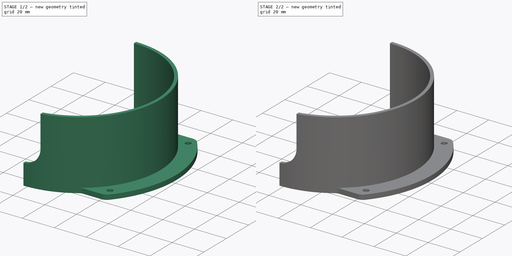
[diagram: build sequence overview — one tinted view per stage of 2, left to right]
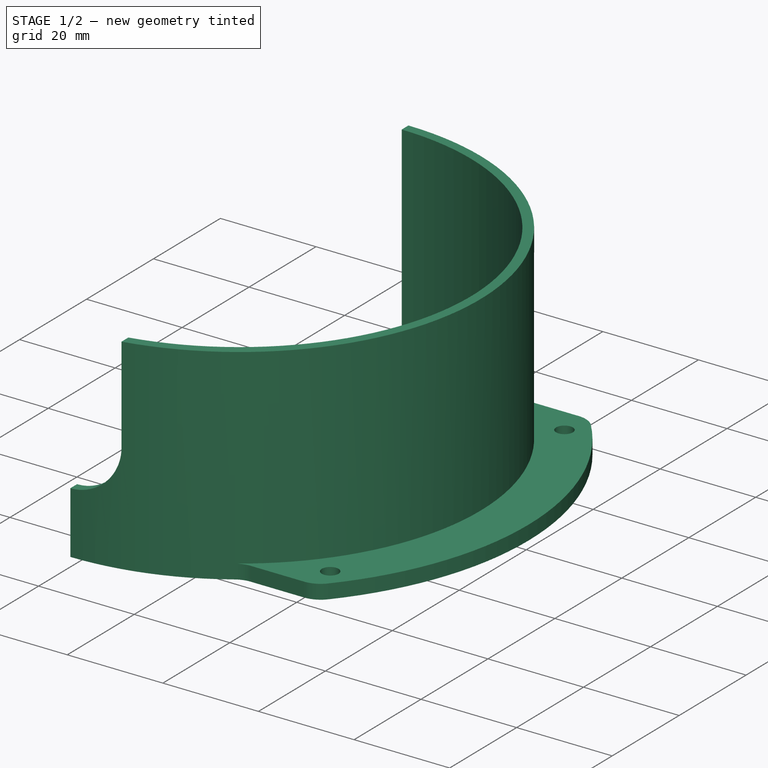
[diagram: stage 1 of 2 — iso view after this stage's code; geometry added in this stage tinted green]
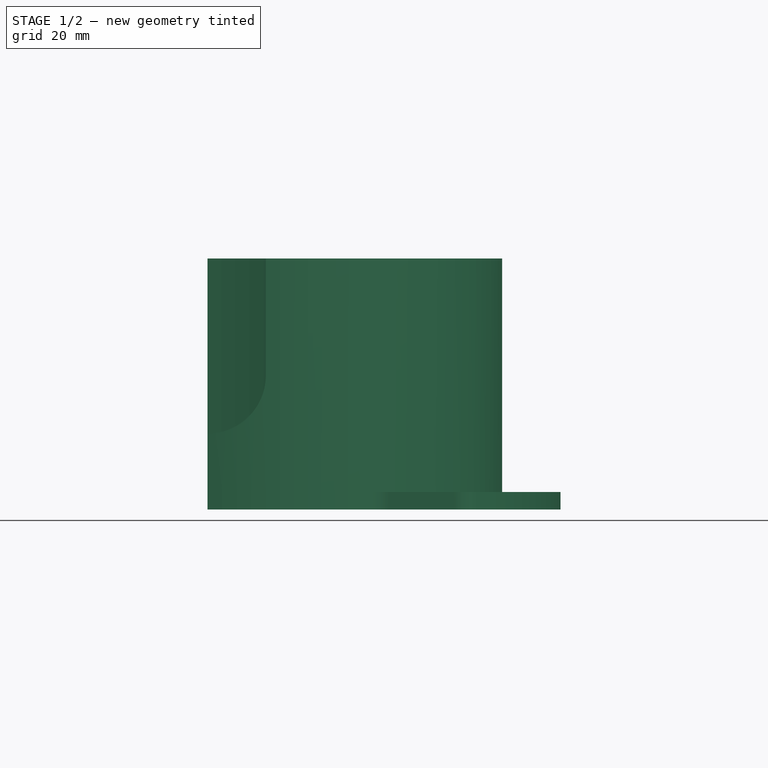
[diagram: stage 1 of 2 — front view after this stage's code; geometry added in this stage tinted green]
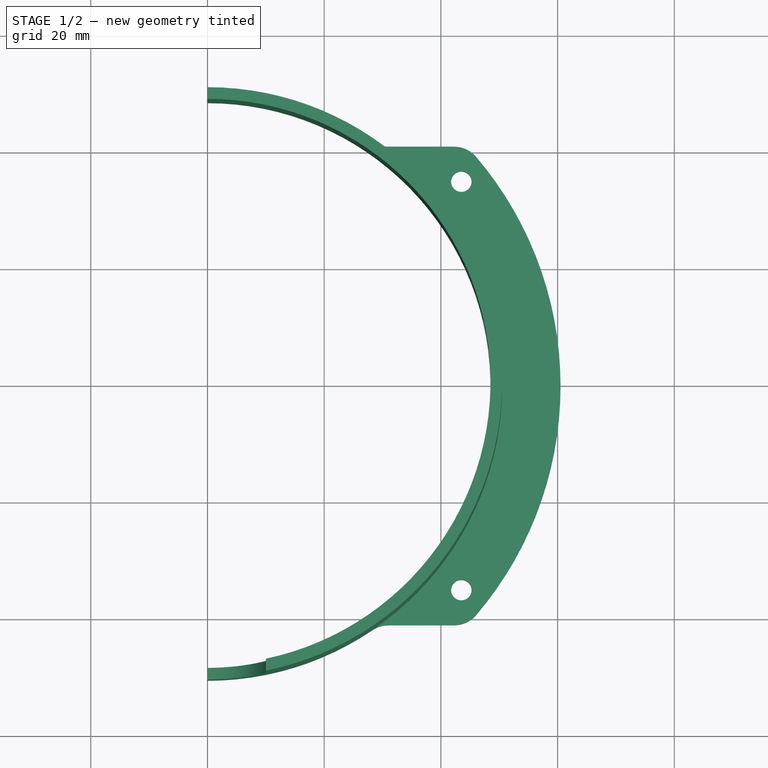
[diagram: stage 1 of 2 — top view after this stage's code; geometry added in this stage tinted green]
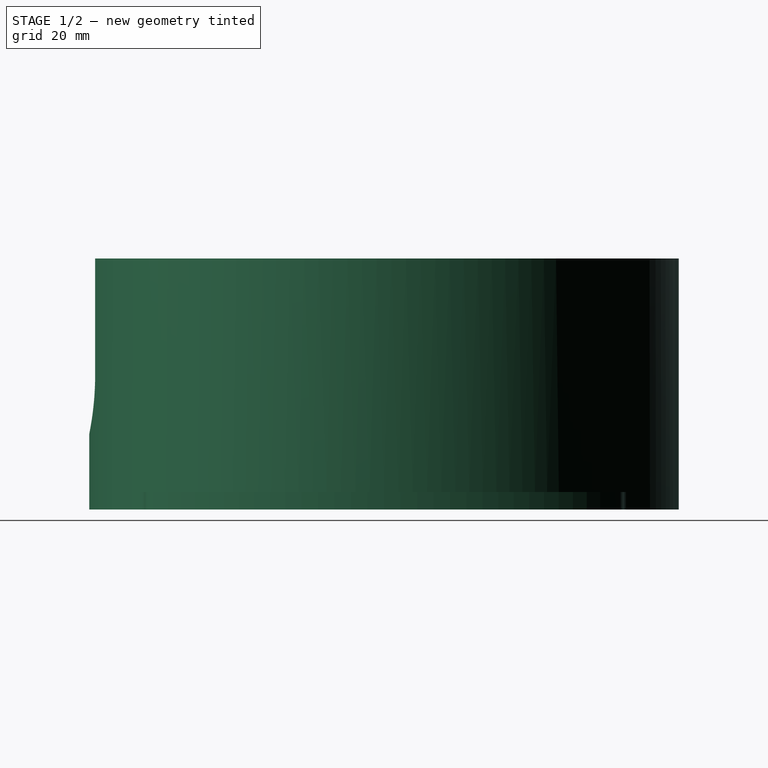
[diagram: stage 1 of 2 — right view after this stage's code; geometry added in this stage tinted green]
FCSTD DOCUMENT  (FreeCAD 0.18.4R)
Label: Съёмник стаканов1
License: All rights reserved
LicenseURL: http://en.wikipedia.org/wiki/All_rights_reserved
objects: Sketcher::SketchObject×4, PartDesign::Pad×2, PartDesign::Plane×2, PartDesign::Pocket×2, PartDesign::Mirrored×1, PartDesign::Body×1
note: 16 computed .brp shape members not serialized (recipe doc carries the construction recipe); baked Part::Feature solids carry a one-line shape summary decoded from their .brp

FEATURE [PartDesign::Pad] Pad001  label="Unnamed"
  Length = 100
  Length2 = 100
  Type = 0
FEATURE [PartDesign::Plane] DatumPlane  label="Unnamed"
  Length = 24
  ResizeMode = 0
  Width = 24
FEATURE [Sketcher::SketchObject] Sketch001  label="Sketch002"
  ExternalGeometry = -> [Pad]
  MapMode = 5
  Placement = pos=(-9.3e-15,-50.5,3) rot=(1,0,0;1.5708rad)
  Support = -> [DatumPlane]
  constraints (10):
    c: Coincident(g0,g-1)
    c: Coincident(g1,g0)
    c: PointOnObject(g1,g-2)
    c: Coincident(g2,g0)
    c: Coincident(g2,g1)
    c: Coincident(g3,g0)
    c: Coincident(g3,g1)
    c: Coincident(g0,g-3)
    c: Coincident(g1,g-4)
    c: PointOnObject(g0,g-2)
FEATURE [Sketcher::SketchObject] Sketch002  label="Unnamed"
FEATURE [PartDesign::Pocket] Pocket
  BaseFeature = -> Pad001
  Length = 0
  Length2 = 100
  Profile = -> Sketch002
  Type = 3
  UpToFace = -> Pad001 [Face7]
FEATURE [PartDesign::Plane] DatumPlane001
  Length = 28.0179
  MapMode = 13
  Placement = pos=(31.0524,-13.6667,1) rot=(0.57735,-0.57735,-0.57735;2.0944rad)
  ResizeMode = 0
  Support = -> [Pocket]
  Width = 24.3512
FEATURE [Sketcher::SketchObject] Sketch003  label="Unnamed"
  ExternalGeometry = -> [Pocket]
  constraints (19):
    c: Coincident(g0,g1)
    c: Coincident(g1,g2)
    c: Coincident(g2,g3)
    c: Coincident(g3,g0)
    c: Horizontal(g2)
    c: Vertical(g1)
    c: Coincident(g0,g-3)
    c: Coincident(g4,g5)
    c: Coincident(g5,g6)
    c: Coincident(g6,g7)
    c: Coincident(g7,g4)
    c: Horizontal(g4)
    c: Horizontal(g6)
    c: Vertical(g5)
    c: Vertical(g7)
    c: Coincident(g4,g-4)
    c: Coincident(g5,g-5)
    c: Coincident(g0,g-6)
    c: Coincident(g2,g-3)
FEATURE [PartDesign::Pocket] Pocket001  label="Unnamed"
  Length = 100
  Length2 = 100
  Type = 0
FEATURE [PartDesign::Mirrored] Mirrored  label="Unnamed"
FEATURE [PartDesign::Body] Body
  Group = -> [Sketch,Pad,Sketch001,Pad001,DatumPlane,Sketch002,Pocket,DatumPlane001,Sketch003,Pocket001,Mirrored]
  Origin = -> Origin
  Tip = -> Mirrored
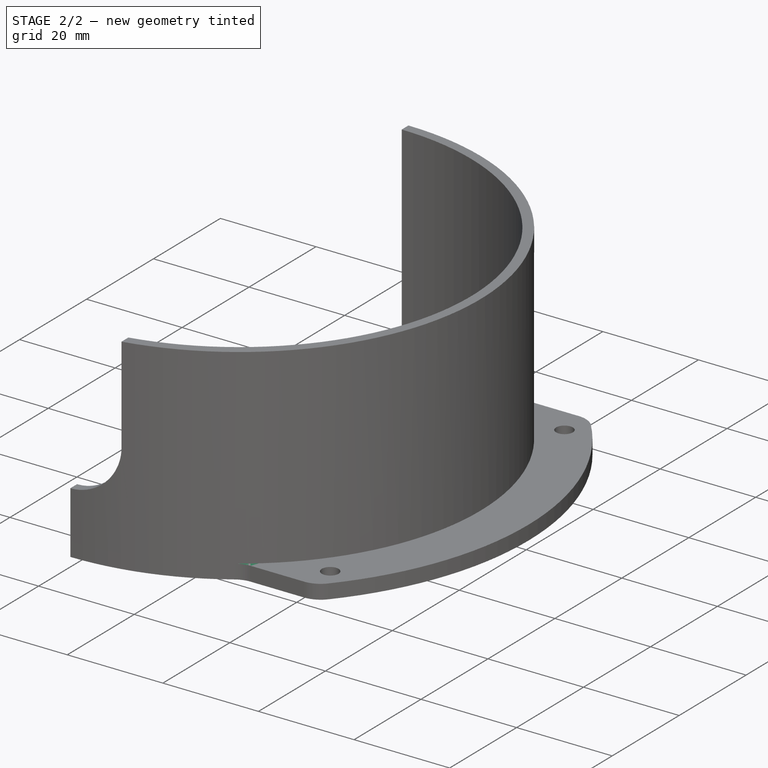
[diagram: stage 2 of 2 — iso view after this stage's code; geometry added in this stage tinted green]
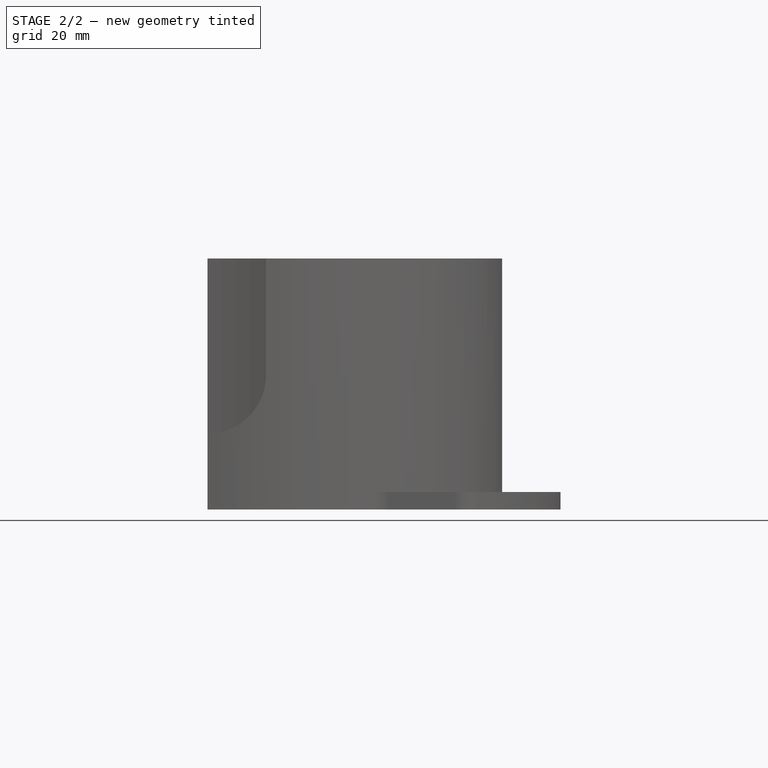
[diagram: stage 2 of 2 — front view after this stage's code; geometry added in this stage tinted green]
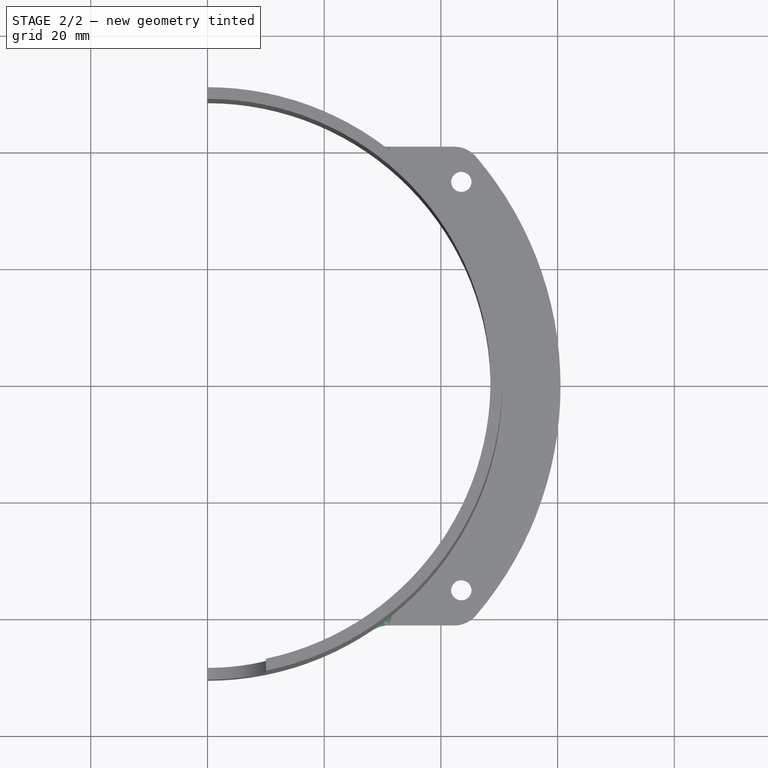
[diagram: stage 2 of 2 — top view after this stage's code; geometry added in this stage tinted green]
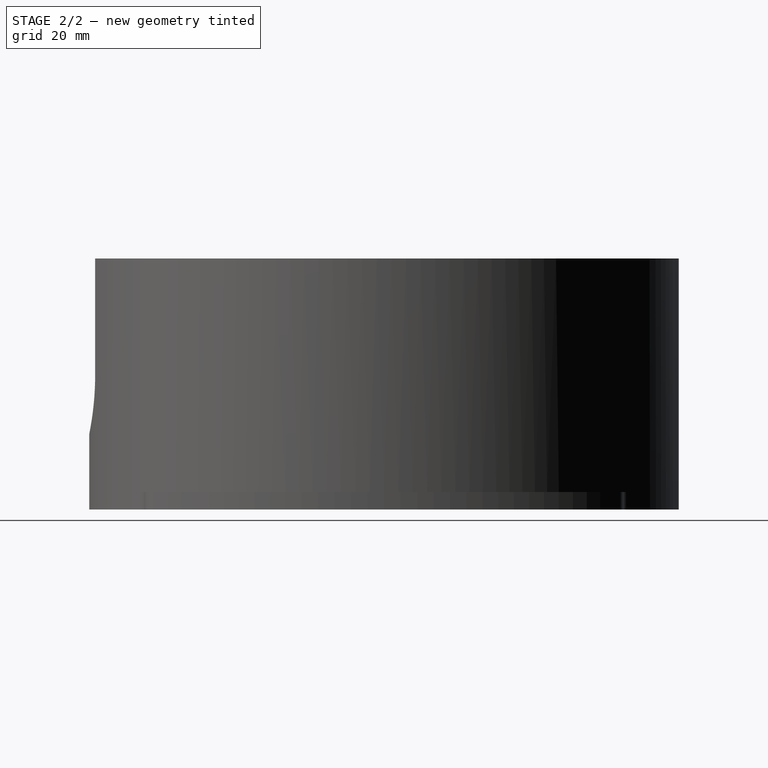
[diagram: stage 2 of 2 — right view after this stage's code; geometry added in this stage tinted green]
FEATURE [Sketcher::SketchObject] Sketch
  MapMode = 5
  Support = -> [XY_Plane]
  expr: Constraints[21] = Constraints[8] + 12 * 2mm
  constraints (57):
    c: Coincident(g0,g-1)
    c: PointOnObject(g0,g-2)
    c: Coincident(g1,g0)
    c: PointOnObject(g1,g-2)
    c: Coincident(g2,g0)
    c: Coincident(g2,g1)
    c: Perpendicular(g0,g2)
    c: Distance(g2) = 2
    c: Diameter(g0) = 97
    c: Coincident(g3,g0)
    c: Coincident(g3,g1)
    c: PointOnObject(g5,g1)
    c: Coincident(g6,g5)
    c: Coincident(g6,g4)
    c: Coincident(g7,g0)
    c: Coincident(g7,g4)
    c: PointOnObject(g7,g-1)
    c: Tangent(g1,g5)
    c: Tangent(g5,g6)
    c: Tangent(g6,g4)
    c: Tangent(g4,g7)
    c: Diameter(g7) = 121
    c: Distance(g8,g-2) = 43.5
    c: Distance(g8,g-1) = 35
    c: Horizontal(g6)
    c: Coincident(g10,g9)
    c: Coincident(g10,g11)
    c: Coincident(g12,g11)
    c: Tangent(g9,g10)
    c: Tangent(g10,g11)
    c: Tangent(g11,g12)
    c: Horizontal(g10)
    c: Equal(g13,g8)
    c: Tangent(g9,g1)
    c: PointOnObject(g14,g-1)
    c: Vertical(g14)
    c: Coincident(g15,g14)
    c: Equal(g15,g14)
    c: Vertical(g15)
    c: Coincident(g12,g7)
    c: Equal(g11,g4)
    c: Diameter(g8) = 3.5
    c: Coincident(g16,g0)
    c: Coincident(g16,g9)
    c: Coincident(g16,g3)
    c: Coincident(g17,g2)
    c: Coincident(g17,g5)
    c: PointOnObject(g17,g-1)
    c: PointOnObject(g0,g-2)
    c: Coincident(g14,g8)
    c: Coincident(g13,g15)
    c: Distance(g4,g-1) = 41
    c: Distance(g10,g-1) = 41
    c: Coincident(g12,g0)
    c: Equal(g9,g5)
    c: Diameter(g5) = 10
    c: Diameter(g4) = 10
FEATURE [PartDesign::Pad] Pad
  Length = 3
  Length2 = 100
  Profile = -> Sketch
  Type = 0
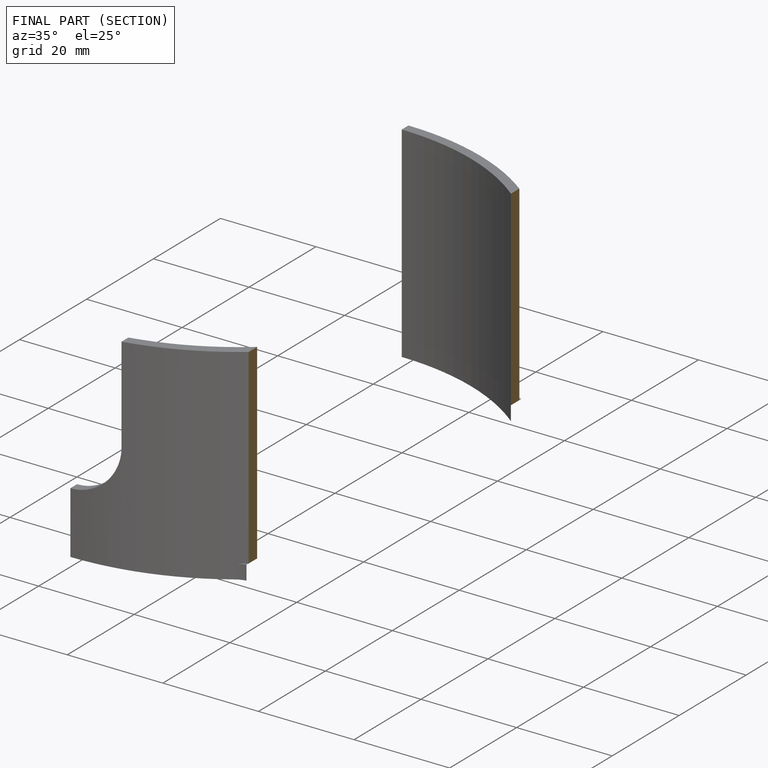
[diagram: finished part — half-section view (interior)]
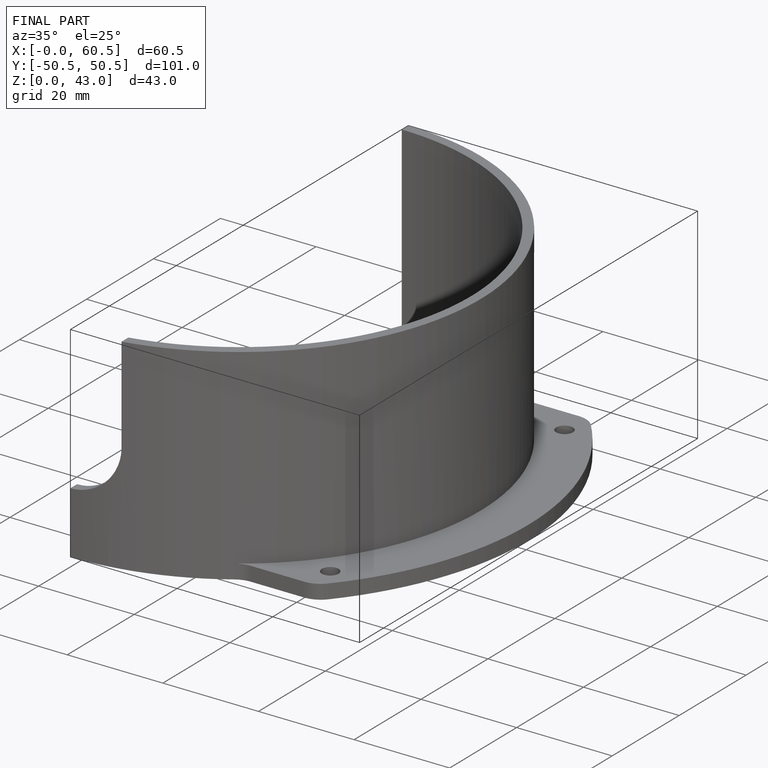
[diagram: finished part — iso view with bounding-box wireframe]
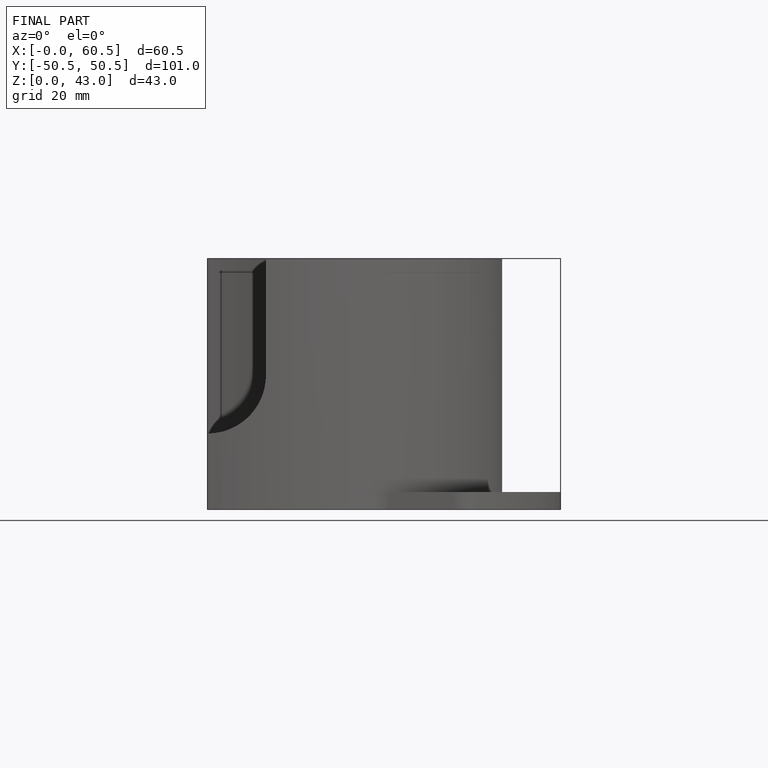
[diagram: finished part — front view with bounding-box wireframe]
